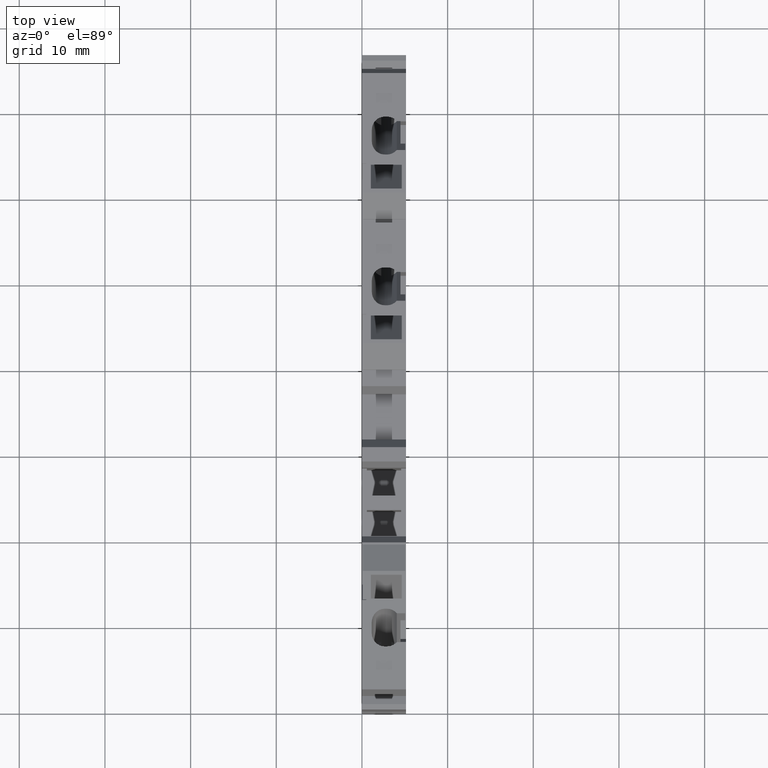
[diagram: clean part render]
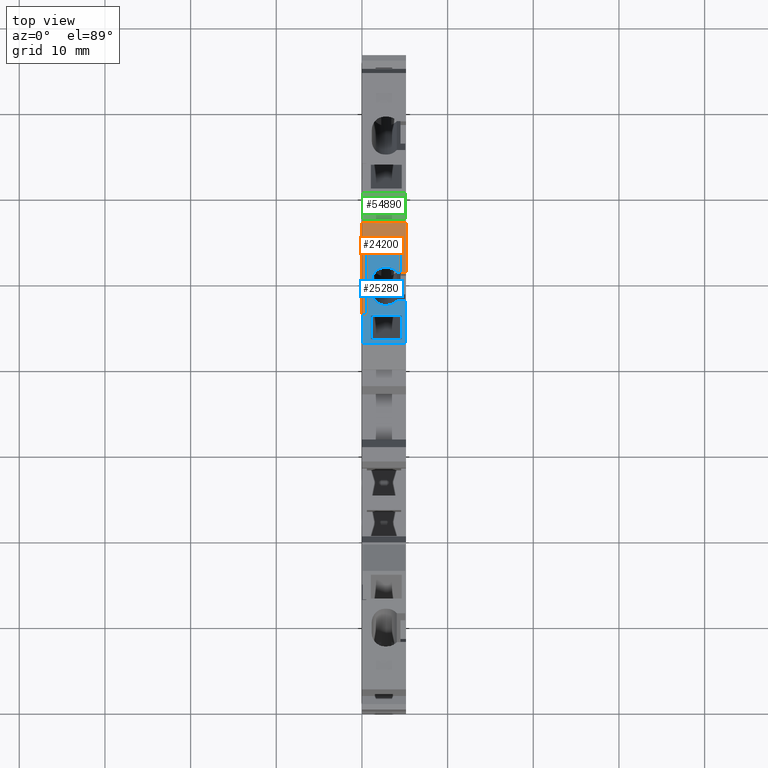
[diagram: same view with three faces highlighted in distinct colors, each labeled with its STEP entity id]
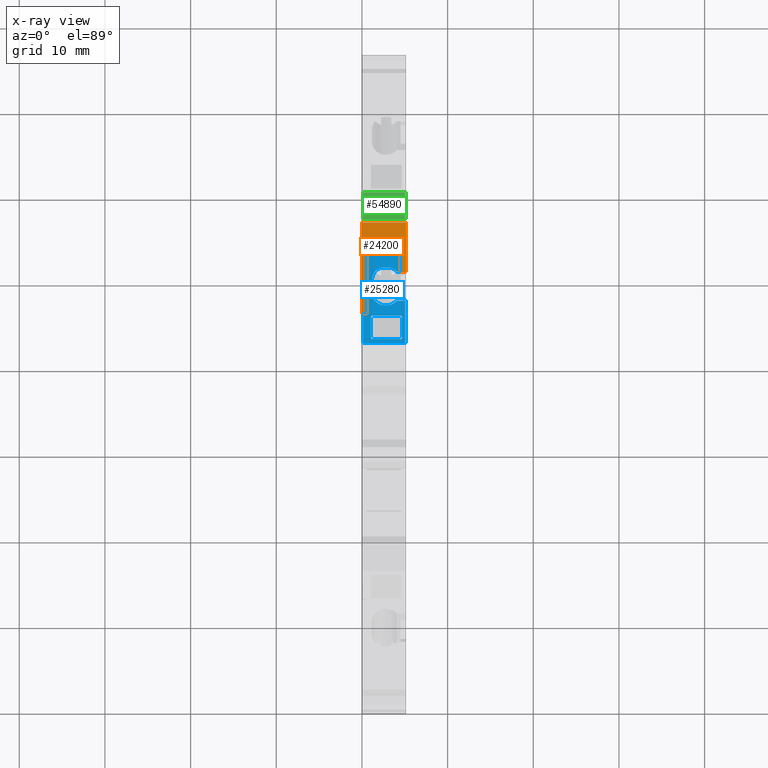
[diagram: x-ray of the same camera — body ghosted, the three highlighted faces saturated]
A machine part, top view with three faces highlighted in distinct colors.
The next image is the same camera in x-ray (body ghosted, the three faces saturated) — at least one of them is partly hidden behind the body in this view.
Their STEP definitions:

[orange] entity #24200 — the highlighted planar face has unit normal (-0, 0, -1).
#4410=CARTESIAN_POINT('',(53.7023986283334,38.4131621817427,
6.13275257576495E-11));
#4420=VERTEX_POINT('',#4410);
#4450=CARTESIAN_POINT('',(-0.0992546151641323,31.8071498123863,
8.92282312783553E-11));
#4460=DIRECTION('',(0.992546151641315,0.121869343405205,
-5.15663900468866E-13));
#4470=VECTOR('',#4460,1.);
#4480=LINE('',#4450,#4470);
#4490=CARTESIAN_POINT('',(59.4247919657575,39.1157837349923,
5.8354373124069E-11));
#4500=VERTEX_POINT('',#4490);
#4510=EDGE_CURVE('',#4420,#4500,#4480,.T.);
#7220=CARTESIAN_POINT('',(59.4247919657583,39.1157837349924,
-5.15000000005155));
#7230=VERTEX_POINT('',#7220);
#7260=CARTESIAN_POINT('',(-0.0992546151641323,31.8071498123863,
-5.15000000005876));
#7270=DIRECTION('',(0.992546151641315,0.121869343405205,
1.20466137065733E-13));
#7280=VECTOR('',#7270,1.);
#7290=LINE('',#7260,#7280);
#7300=CARTESIAN_POINT('',(48.8541754507767,37.8178752277268,
-5.15000000005283));
#7310=VERTEX_POINT('',#7300);
#7320=EDGE_CURVE('',#7310,#7230,#7290,.T.);
#17680=CARTESIAN_POINT('',(56.9434265866551,38.8111103764794,
-0.65000000007101));
#17690=VERTEX_POINT('',#17680);
#17740=CARTESIAN_POINT('',(64.5573094380476,39.7459776391542,
-0.650000000071009));
#17750=DIRECTION('',(-0.992546151641315,-0.121869343405205,
-8.64803049957699E-17));
#17760=VECTOR('',#17750,1.);
#17770=LINE('',#17740,#17760);
#17780=CARTESIAN_POINT('',(53.702398628334,38.4131621817427,
-0.650000000071009));
#17790=VERTEX_POINT('',#17780);
#17800=EDGE_CURVE('',#17690,#17790,#17770,.T.);
#23760=CARTESIAN_POINT('',(58.6070358090903,39.0153759043702,
-7.10144512213411E-11));
#23770=DIRECTION('',(0.121869343405205,-0.992546151641315,
9.47890419447437E-17));
#23780=DIRECTION('',(-0.992546151641315,-0.121869343405205,
-8.64803049957699E-17));
#23790=AXIS2_PLACEMENT_3D('',#23760,#23770,#23780);
#23800=PLANE('',#23790);
#23810=ORIENTED_EDGE('',*,*,#7320,.F.);
#23820=CARTESIAN_POINT('',(59.4247919657575,39.1157837349923,
7.99360577730113E-15));
#23830=DIRECTION('',(1.6845707376327E-13,2.05884269419161E-14,-1.));
#23840=VECTOR('',#23830,1.);
#23850=LINE('',#23820,#23840);
#23860=EDGE_CURVE('',#4500,#7230,#23850,.T.);
#23870=ORIENTED_EDGE('',*,*,#23860,.T.);
#23880=ORIENTED_EDGE('',*,*,#4510,.T.);
#23890=CARTESIAN_POINT('',(53.7023986283334,38.4131621817427,
-7.09782412013742E-11));
#23900=DIRECTION('',(9.28735820358355E-13,1.13938919006449E-13,-1.));
#23910=VECTOR('',#23900,1.);
#23920=LINE('',#23890,#23910);
#23930=EDGE_CURVE('',#4420,#17790,#23920,.T.);
#23940=ORIENTED_EDGE('',*,*,#23930,.F.);
#23950=ORIENTED_EDGE('',*,*,#17800,.T.);
#23960=CARTESIAN_POINT('',(56.9434265866551,38.8111103764794,
-7.09779588113958E-11));
#23970=DIRECTION('',(-1.12577348889874E-16,8.16781307540979E-17,1.));
#23980=VECTOR('',#23970,1.);
#23990=LINE('',#23960,#23980);
#24000=CARTESIAN_POINT('',(56.943426586655,38.8111103764794,
-4.65000000007103));
#24010=VERTEX_POINT('',#24000);
#24020=EDGE_CURVE('',#24010,#17690,#23990,.T.);
#24030=ORIENTED_EDGE('',*,*,#24020,.T.);
#24040=CARTESIAN_POINT('',(64.5573094380476,39.7459776391542,
-4.65000000007103));
#24050=DIRECTION('',(0.992546151641315,0.121869343405205,
8.64803049957699E-17));
#24060=VECTOR('',#24050,1.);
#24070=LINE('',#24040,#24060);
#24080=CARTESIAN_POINT('',(48.8541754507767,37.8178752277268,
-4.65000000007103));
#24090=VERTEX_POINT('',#24080);
#24100=EDGE_CURVE('',#24090,#24010,#24070,.T.);
#24110=ORIENTED_EDGE('',*,*,#24100,.T.);
#24120=CARTESIAN_POINT('',(48.8541754507744,37.8178752277265,
-7.09786636258815E-11));
#24130=DIRECTION('',(4.48731576332898E-13,5.50018086722245E-14,-1.));
#24140=VECTOR('',#24130,1.);
#24150=LINE('',#24120,#24140);
#24160=EDGE_CURVE('',#24090,#7310,#24150,.T.);
#24170=ORIENTED_EDGE('',*,*,#24160,.F.);
#24180=EDGE_LOOP('',(#24170,#24110,#24030,#23950,#23940,#23880,#23870,
#23810));
#24190=FACE_OUTER_BOUND('',#24180,.T.);
#24200=ADVANCED_FACE('',(#24190),#23800,.F.);

[blue] entity #25280 — the highlighted planar face has unit normal (-0, 0, -1).
#17300=CARTESIAN_POINT('',(51.4390895144268,38.0345117834581,
-4.00000000006668));
#17310=VERTEX_POINT('',#17300);
#17340=CARTESIAN_POINT('',(64.5816833067286,39.6482193913719,
-4.00000000004191));
#17350=DIRECTION('',(0.992546151641315,0.121869343405205,
1.87104819919112E-12));
#17360=VECTOR('',#17350,1.);
#17370=LINE('',#17340,#17360);
#17380=CARTESIAN_POINT('',(52.7232877393968,38.1921914986234,
-4.00000000006426));
#17390=VERTEX_POINT('',#17380);
#17400=EDGE_CURVE('',#17310,#17390,#17370,.T.);
#17700=CARTESIAN_POINT('',(56.9556135209956,38.7118557613153,
-0.65000000007101));
#17710=VERTEX_POINT('',#17700);
#18090=CARTESIAN_POINT('',(53.7383565621962,38.3168262783171,
-0.65000000007101));
#18100=VERTEX_POINT('',#18090);
#18130=CARTESIAN_POINT('',(64.5816833067286,39.6482193913719,
-0.650000000071009));
#18140=DIRECTION('',(-0.992546151641315,-0.121869343405205,
-8.64803049957699E-17));
#18150=VECTOR('',#18140,1.);
#18160=LINE('',#18130,#18150);
#18170=EDGE_CURVE('',#17710,#18100,#18160,.T.);
#18870=CARTESIAN_POINT('',(49.8736523380277,37.8423002671329,
-2.50000000006848));
#18880=VERTEX_POINT('',#18870);
#18910=CARTESIAN_POINT('',(51.4390895144236,38.0345117834577,
-2.50000000006669));
#18920=DIRECTION('',(0.121869343405205,-0.992546151641316,
8.26319262671351E-17));
#18930=DIRECTION('',(0.992546151641315,0.121869343405205,
-7.13354647347282E-13));
#18940=AXIS2_PLACEMENT_3D('',#18910,#18920,#18930);
#18950=ELLIPSE('',#18940,1.57719333635738,1.5);
#18960=EDGE_CURVE('',#18880,#17310,#18950,.T.);
#19140=CARTESIAN_POINT('',(49.8736523380244,37.8423002671323,
-7.09785675977601E-11));
#19150=DIRECTION('',(1.32233537778311E-12,1.62266867836449E-13,-1.));
#19160=VECTOR('',#19150,1.);
#19170=LINE('',#19140,#19160);
#19180=CARTESIAN_POINT('',(49.8736523380273,37.8423002671327,
-2.20000000010822));
#19190=VERTEX_POINT('',#19180);
#19200=EDGE_CURVE('',#19190,#18880,#19170,.T.);
#19580=CARTESIAN_POINT('',(50.3954647301489,37.9063707725731,
-1.08196601136536));
#19590=VERTEX_POINT('',#19580);
#19620=CARTESIAN_POINT('',(51.4390895144231,38.0345117834576,
-2.20000000010654));
#19630=DIRECTION('',(0.121869343405205,-0.992546151641316,
8.26319262671351E-17));
#19640=DIRECTION('',(0.992546151641315,0.121869343405205,
-1.49828888745486E-12));
#19650=AXIS2_PLACEMENT_3D('',#19620,#19630,#19640);
#19660=ELLIPSE('',#19650,1.57719333635738,1.5);
#19670=EDGE_CURVE('',#19590,#19190,#19660,.T.);
#20910=CARTESIAN_POINT('',(50.3954647301553,37.9063707725738,
-0.100000000071004));
#20920=VERTEX_POINT('',#20910);
#20950=CARTESIAN_POINT('',(50.3954647301551,37.9063707725738,
-7.09785221323731E-11));
#20960=DIRECTION('',(1.3223353777824E-12,1.62266867836361E-13,-1.));
#20970=VECTOR('',#20960,1.);
#20980=LINE('',#20950,#20970);
#20990=EDGE_CURVE('',#20920,#19590,#20980,.T.);
#21210=CARTESIAN_POINT('',(52.7232877393938,38.192191498623,
-2.50000000006426));
#21220=DIRECTION('',(0.121869343405205,-0.992546151641316,
8.26319262671351E-17));
#21230=DIRECTION('',(0.992546151641315,0.121869343405205,
-2.04850235903874E-12));
#21240=AXIS2_PLACEMENT_3D('',#21210,#21220,#21230);
#21250=ELLIPSE('',#21240,1.53403771873909,1.5);
#21260=CARTESIAN_POINT('',(54.2458909736009,38.3791436681646,
-2.50000000006258));
#21270=VERTEX_POINT('',#21260);
#21280=EDGE_CURVE('',#17390,#21270,#21250,.T.);
#22010=CARTESIAN_POINT('',(54.2458909736005,38.3791436681645,
-2.20000000010354));
#22020=VERTEX_POINT('',#22010);
#22050=CARTESIAN_POINT('',(52.7232877393934,38.192191498623,
-2.20000000010517));
#22060=DIRECTION('',(0.121869343405205,-0.992546151641316,
8.26319262671351E-17));
#22070=DIRECTION('',(0.992546151641315,0.121869343405205,
-2.82099148280123E-12));
#22080=AXIS2_PLACEMENT_3D('',#22050,#22060,#22070);
#22090=ELLIPSE('',#22080,1.53403771873909,1.5);
#22100=CARTESIAN_POINT('',(53.7383565621968,38.3168262783172,
-1.08196601135419));
#22110=VERTEX_POINT('',#22100);
#22120=EDGE_CURVE('',#22020,#22110,#22090,.T.);
#22400=CARTESIAN_POINT('',(53.7383565621954,38.316826278317,
-7.09782308670202E-11));
#22410=DIRECTION('',(-1.23094918463465E-12,-1.51046054238122E-13,1.));
#22420=VECTOR('',#22410,1.);
#22430=LINE('',#22400,#22420);
#22440=EDGE_CURVE('',#22110,#18100,#22430,.T.);
#22640=CARTESIAN_POINT('',(54.2458909735978,38.3791436681642,
-7.09781866456702E-11));
#22650=DIRECTION('',(-1.23094918463465E-12,-1.51046054238122E-13,1.));
#22660=VECTOR('',#22650,1.);
#22670=LINE('',#22640,#22660);
#22680=EDGE_CURVE('',#21270,#22020,#22670,.T.);
#22920=CARTESIAN_POINT('',(45.4917054695383,37.3042648449851,
-0.100000000071005));
#22930=VERTEX_POINT('',#22920);
#22960=CARTESIAN_POINT('',(64.5816833067286,39.6482193913719,
-0.100000000071003));
#22970=DIRECTION('',(0.992546151641315,0.121869343405205,
8.64803049957699E-17));
#22980=VECTOR('',#22970,1.);
#22990=LINE('',#22960,#22980);
#23000=EDGE_CURVE('',#22930,#20920,#22990,.T.);
#23230=CARTESIAN_POINT('',(45.4917054695363,37.3042648449849,
-5.05000000007101));
#23240=VERTEX_POINT('',#23230);
#23270=CARTESIAN_POINT('',(45.4917054695383,37.3042648449852,
-7.09789493957259E-11));
#23280=DIRECTION('',(-4.02466479067065E-13,-4.95121708015166E-14,-1.));
#23290=VECTOR('',#23280,1.);
#23300=LINE('',#23270,#23290);
#23310=EDGE_CURVE('',#22930,#23240,#23300,.T.);
#23550=CARTESIAN_POINT('',(48.7934406270375,37.7096669465166,
-5.05000000007101));
#23560=VERTEX_POINT('',#23550);
#23590=CARTESIAN_POINT('',(64.5755898395583,39.647471207681,
-5.05000000007101));
#23600=DIRECTION('',(-0.992546151641315,-0.121869343405205,
-8.64803049957699E-17));
#23610=VECTOR('',#23600,1.);
#23620=LINE('',#23590,#23610);
#23630=EDGE_CURVE('',#23560,#23240,#23620,.T.);
#24330=CARTESIAN_POINT('',(56.9556135209956,38.7118557613153,
-7.09779505482032E-11));
#24340=DIRECTION('',(-1.12577348889874E-16,8.16781307540979E-17,1.));
#24350=VECTOR('',#24340,1.);
#24360=LINE('',#24330,#24350);
#24370=CARTESIAN_POINT('',(56.9556135209956,38.7118557613153,
-4.65000000007103));
#24380=VERTEX_POINT('',#24370);
#24390=EDGE_CURVE('',#24380,#17710,#24360,.T.);
#24590=CARTESIAN_POINT('',(57.7295401316846,38.8068820003798,
-2.30546382926593));
#24600=DIRECTION('',(0.121869343405205,-0.992546151641315,
9.47890419447437E-17));
#24610=DIRECTION('',(0.992546151641315,0.121869343405205,
8.64803049957699E-17));
#24620=AXIS2_PLACEMENT_3D('',#24590,#24600,#24610);
#24630=PLANE('',#24620);
#24640=CARTESIAN_POINT('',(45.9325803312224,37.3583974712902,
-7.09789109824063E-11));
#24650=DIRECTION('',(-1.78897718200753E-12,-2.19563276867111E-13,1.));
#24660=VECTOR('',#24650,1.);
#24670=LINE('',#24640,#24660);
#24680=CARTESIAN_POINT('',(45.9325803312298,37.3583974712911,
-4.10000000009034));
#24690=VERTEX_POINT('',#24680);
#24700=CARTESIAN_POINT('',(45.9325803312233,37.3583974712903,
-0.50000000009034));
#24710=VERTEX_POINT('',#24700);
#24720=EDGE_CURVE('',#24690,#24710,#24670,.T.);
#24730=ORIENTED_EDGE('',*,*,#24720,.F.);
#24740=CARTESIAN_POINT('',(64.5816833067286,39.6482193913719,
-0.500000000058943));
#24750=DIRECTION('',(0.992546151641315,0.121869343405205,
1.67115254360736E-12));
#24760=VECTOR('',#24750,1.);
#24770=LINE('',#24740,#24760);
#24780=CARTESIAN_POINT('',(48.6923033407981,37.6972488492347,
-0.500000000085695));
#24790=VERTEX_POINT('',#24780);
#24800=EDGE_CURVE('',#24710,#24790,#24770,.T.);
#24810=ORIENTED_EDGE('',*,*,#24800,.F.);
#24820=CARTESIAN_POINT('',(48.6923033407975,37.6972488492347,
-7.09786705284111E-11));
#24830=DIRECTION('',(1.25745225619737E-12,1.5430022224253E-13,-1.));
#24840=VECTOR('',#24830,1.);
#24850=LINE('',#24820,#24840);
#24860=CARTESIAN_POINT('',(48.6923033408027,37.6972488492353,
-4.1000000000857));
#24870=VERTEX_POINT('',#24860);
#24880=EDGE_CURVE('',#24790,#24870,#24850,.T.);
#24890=ORIENTED_EDGE('',*,*,#24880,.F.);
#24900=CARTESIAN_POINT('',(64.5816833067286,39.6482193913719,
-4.10000000005894));
#24910=DIRECTION('',(0.992546151641315,0.121869343405205,
1.67115254360736E-12));
#24920=VECTOR('',#24910,1.);
#24930=LINE('',#24900,#24920);
#24940=EDGE_CURVE('',#24690,#24870,#24930,.T.);
#24950=ORIENTED_EDGE('',*,*,#24940,.T.);
#24960=EDGE_LOOP('',(#24950,#24890,#24810,#24730));
#24970=FACE_BOUND('',#24960,.T.);
#24980=ORIENTED_EDGE('',*,*,#18170,.F.);
#24990=ORIENTED_EDGE('',*,*,#22440,.T.);
#25000=ORIENTED_EDGE('',*,*,#22120,.T.);
#25010=ORIENTED_EDGE('',*,*,#22680,.T.);
#25020=ORIENTED_EDGE('',*,*,#21280,.T.);
#25030=ORIENTED_EDGE('',*,*,#17400,.T.);
#25040=ORIENTED_EDGE('',*,*,#18960,.T.);
#25050=ORIENTED_EDGE('',*,*,#19200,.T.);
#25060=ORIENTED_EDGE('',*,*,#19670,.T.);
#25070=ORIENTED_EDGE('',*,*,#20990,.T.);
#25080=ORIENTED_EDGE('',*,*,#23000,.T.);
#25090=ORIENTED_EDGE('',*,*,#23310,.F.);
#25100=ORIENTED_EDGE('',*,*,#23630,.T.);
#25110=CARTESIAN_POINT('',(48.7934406270375,37.7096669465166,
-7.09786617163439E-11));
#25120=DIRECTION('',(-1.12577348889874E-16,8.16781307540979E-17,1.));
#25130=VECTOR('',#25120,1.);
#25140=LINE('',#25110,#25130);
#25150=CARTESIAN_POINT('',(48.7934406270375,37.7096669465166,
-4.65000000007103));
#25160=VERTEX_POINT('',#25150);
#25170=EDGE_CURVE('',#23560,#25160,#25140,.T.);
#25180=ORIENTED_EDGE('',*,*,#25170,.F.);
#25190=CARTESIAN_POINT('',(64.5816833067286,39.6482193913719,
-4.65000000007103));
#25200=DIRECTION('',(0.992546151641315,0.121869343405205,
8.64803049957699E-17));
#25210=VECTOR('',#25200,1.);
#25220=LINE('',#25190,#25210);
#25230=EDGE_CURVE('',#25160,#24380,#25220,.T.);
#25240=ORIENTED_EDGE('',*,*,#25230,.F.);
#25250=ORIENTED_EDGE('',*,*,#24390,.F.);
#25260=EDGE_LOOP('',(#25250,#25240,#25180,#25100,#25090,#25080,#25070,
#25060,#25050,#25040,#25030,#25020,#25010,#25000,#24990,#24980));
#25270=FACE_OUTER_BOUND('',#25260,.T.);
#25280=ADVANCED_FACE('',(#24970,#25270),#24630,.F.);

[green] entity #54890 — the highlighted planar face has unit normal (0, -0.4472, 0.8944).
#53980=CARTESIAN_POINT('',(60.0725221506158,37.5329237893129,
-0.100000000070884));
#53990=VERTEX_POINT('',#53980);
#54070=CARTESIAN_POINT('',(60.0725221506165,37.5329237893144,
-5.05000000007089));
#54080=VERTEX_POINT('',#54070);
#54110=CARTESIAN_POINT('',(60.0725221506158,37.5329237893129,
-7.08581481930877E-11));
#54120=DIRECTION('',(-1.33406774891479E-13,-3.06050203357693E-13,1.));
#54130=VECTOR('',#54120,1.);
#54140=LINE('',#54110,#54130);
#54150=EDGE_CURVE('',#54080,#53990,#54140,.T.);
#54340=CARTESIAN_POINT('',(79.8421183435957,50.6504371315418,
-0.100000000070883));
#54350=DIRECTION('',(0.833258639104385,0.552883387666793,
4.03962154252382E-17));
#54360=VECTOR('',#54350,1.);
#54370=LINE('',#54340,#54360);
#54380=CARTESIAN_POINT('',(62.9605177384255,39.4491652889164,
-0.100000000070885));
#54390=VERTEX_POINT('',#54380);
#54400=EDGE_CURVE('',#53990,#54390,#54370,.T.);
#54660=CARTESIAN_POINT('',(60.0725221506166,37.5329237893147,
-5.96000240012022));
#54670=DIRECTION('',(-0.552883387666793,0.833258639104385,
1.8126058630775E-13));
#54680=DIRECTION('',(0.833258639104385,0.552883387666793,
2.80364169570416E-13));
#54690=AXIS2_PLACEMENT_3D('',#54660,#54670,#54680);
#54700=PLANE('',#54690);
#54710=ORIENTED_EDGE('',*,*,#54150,.T.);
#54720=CARTESIAN_POINT('',(79.8421183435955,50.6504371315427,
-5.05000000007089));
#54730=DIRECTION('',(0.833258639104385,0.552883387666793,
4.03962154252382E-17));
#54740=VECTOR('',#54730,1.);
#54750=LINE('',#54720,#54740);
#54760=CARTESIAN_POINT('',(62.9605177384235,39.4491652889162,
-5.05000000007089));
#54770=VERTEX_POINT('',#54760);
#54780=EDGE_CURVE('',#54080,#54770,#54750,.T.);
#54790=ORIENTED_EDGE('',*,*,#54780,.F.);
#54800=CARTESIAN_POINT('',(62.9605177384255,39.4491652889164,
-7.08580081836279E-11));
#54810=DIRECTION('',(-4.02466479067065E-13,-4.95121708015166E-14,-1.));
#54820=VECTOR('',#54810,1.);
#54830=LINE('',#54800,#54820);
#54840=EDGE_CURVE('',#54390,#54770,#54830,.T.);
#54850=ORIENTED_EDGE('',*,*,#54840,.T.);
#54860=ORIENTED_EDGE('',*,*,#54400,.T.);
#54870=EDGE_LOOP('',(#54860,#54850,#54790,#54710));
#54880=FACE_OUTER_BOUND('',#54870,.T.);
#54890=ADVANCED_FACE('',(#54880),#54700,.T.);